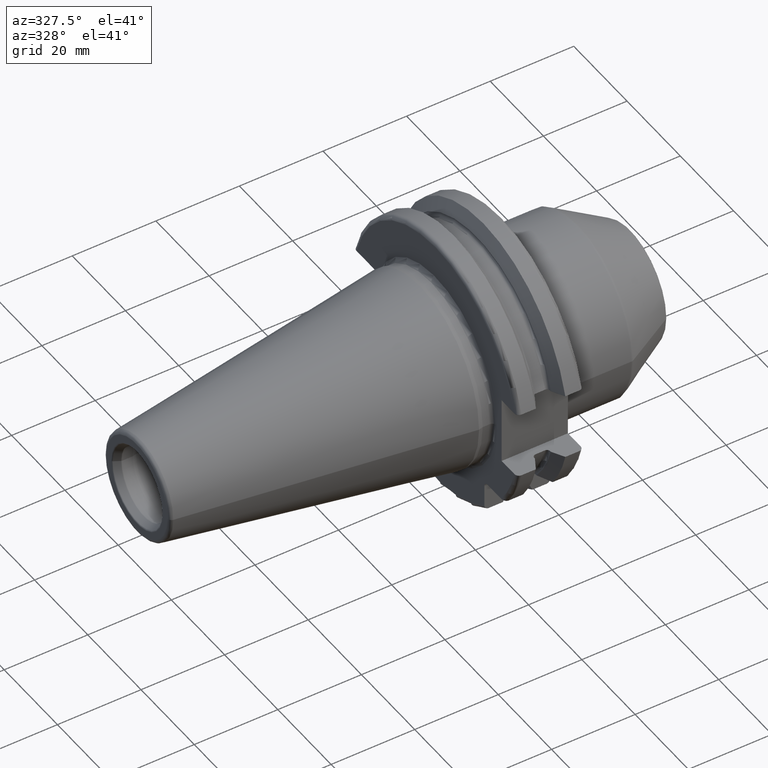
[diagram: clean part render]
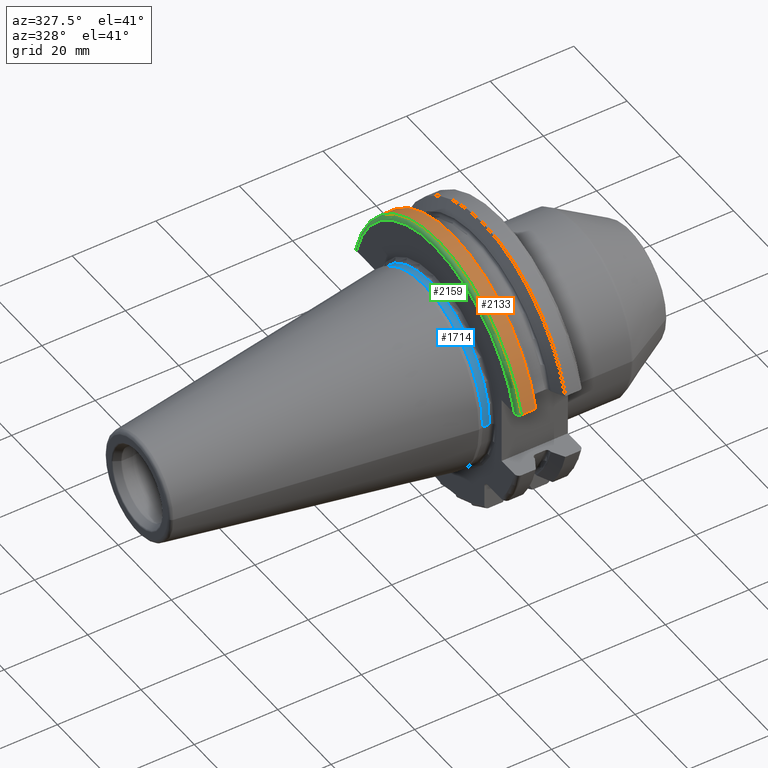
[diagram: same view with three faces highlighted in distinct colors, each labeled with its STEP entity id]
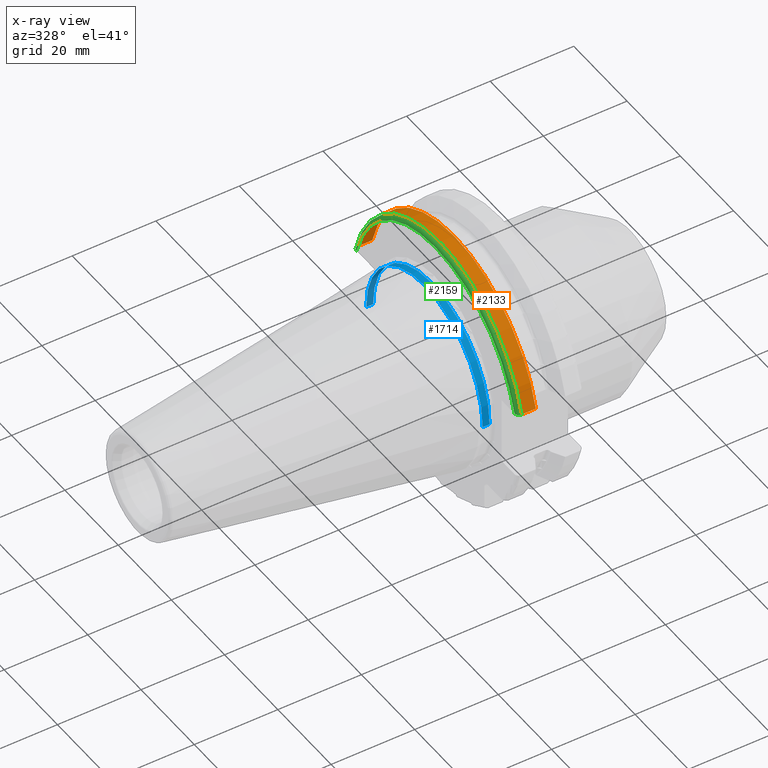
[diagram: x-ray of the same camera — body ghosted, the three highlighted faces saturated]
A machine part, auxiliary view with three faces highlighted in distinct colors.
The next image is the same camera in x-ray (body ghosted, the three faces saturated) — at least one of them is partly hidden behind the body in this view.
Their STEP definitions:

[orange] entity #2133 — the highlighted cylindrical surface (partial cylindrical patch) has radius 31.7625 mm, axis along (1, 0, 0).
#269=CARTESIAN_POINT('',(7.645946479578E0,3.071231684927E1,8.1E0));
#281=CARTESIAN_POINT('',(7.645946479578E0,-3.071231684927E1,8.1E0));
#412=DIRECTION('',(1.E0,0.E0,0.E0));
#413=VECTOR('',#412,3.445946479578E0);
#414=CARTESIAN_POINT('',(4.2E0,3.071231684927E1,8.1E0));
#415=LINE('',#414,#413);
#416=CARTESIAN_POINT('',(7.645946479578E0,0.E0,0.E0));
#417=DIRECTION('',(1.E0,0.E0,0.E0));
#418=DIRECTION('',(0.E0,9.669363825036E-1,2.550177095632E-1));
#419=AXIS2_PLACEMENT_3D('',#416,#417,#418);
#421=DIRECTION('',(1.E0,0.E0,0.E0));
#422=VECTOR('',#421,3.445946479578E0);
#423=CARTESIAN_POINT('',(4.2E0,-3.071231684927E1,8.1E0));
#424=LINE('',#423,#422);
#454=CARTESIAN_POINT('',(4.2E0,0.E0,0.E0));
#455=DIRECTION('',(1.E0,0.E0,0.E0));
#456=DIRECTION('',(0.E0,9.669363825036E-1,2.550177095632E-1));
#457=AXIS2_PLACEMENT_3D('',#454,#455,#456);
#1460=VERTEX_POINT('',#269);
#1461=VERTEX_POINT('',#281);
#1488=CARTESIAN_POINT('',(4.2E0,3.071231684927E1,8.1E0));
#1489=VERTEX_POINT('',#1488);
#1492=CARTESIAN_POINT('',(4.2E0,-3.071231684927E1,8.1E0));
#1493=VERTEX_POINT('',#1492);
#2121=CARTESIAN_POINT('',(-7.2615E1,0.E0,0.E0));
#2122=DIRECTION('',(1.E0,0.E0,0.E0));
#2123=DIRECTION('',(0.E0,-1.E0,0.E0));
#2124=AXIS2_PLACEMENT_3D('',#2121,#2122,#2123);
#2125=CYLINDRICAL_SURFACE('',#2124,3.17625E1);
#2126=ORIENTED_EDGE('',*,*,#1954,.T.);
#2127=ORIENTED_EDGE('',*,*,#1988,.T.);
#2128=ORIENTED_EDGE('',*,*,#2020,.F.);
#2130=ORIENTED_EDGE('',*,*,#2129,.F.);
#2131=EDGE_LOOP('',(#2126,#2127,#2128,#2130));
#2132=FACE_OUTER_BOUND('',#2131,.F.);
#2133=ADVANCED_FACE('',(#2132),#2125,.T.);
#420=CIRCLE('',#419,3.17625E1);
#458=CIRCLE('',#457,3.17625E1);
#1954=EDGE_CURVE('',#1489,#1460,#415,.T.);
#1988=EDGE_CURVE('',#1460,#1461,#420,.T.);
#2020=EDGE_CURVE('',#1493,#1461,#424,.T.);
#2129=EDGE_CURVE('',#1489,#1493,#458,.T.);

[blue] entity #1714 — the highlighted cylindrical surface (partial cylindrical patch) has radius 21.875 mm, axis along (1, 0, 0).
#73=CARTESIAN_POINT('',(5.5E-1,0.E0,0.E0));
#74=DIRECTION('',(1.E0,0.E0,0.E0));
#75=DIRECTION('',(0.E0,1.E0,0.E0));
#76=AXIS2_PLACEMENT_3D('',#73,#74,#75);
#78=CARTESIAN_POINT('',(2.2E0,0.E0,0.E0));
#79=DIRECTION('',(1.E0,0.E0,0.E0));
#80=DIRECTION('',(0.E0,1.E0,0.E0));
#81=AXIS2_PLACEMENT_3D('',#78,#79,#80);
#83=DIRECTION('',(-1.E0,0.E0,0.E0));
#84=VECTOR('',#83,1.65E0);
#85=CARTESIAN_POINT('',(2.2E0,2.1875E1,0.E0));
#86=LINE('',#85,#84);
#87=DIRECTION('',(-1.E0,0.E0,0.E0));
#88=VECTOR('',#87,1.65E0);
#89=CARTESIAN_POINT('',(2.2E0,-2.1875E1,0.E0));
#90=LINE('',#89,#88);
#1342=CARTESIAN_POINT('',(2.2E0,2.1875E1,0.E0));
#1343=CARTESIAN_POINT('',(5.5E-1,2.1875E1,0.E0));
#1344=VERTEX_POINT('',#1342);
#1345=VERTEX_POINT('',#1343);
#1347=CARTESIAN_POINT('',(2.2E0,-2.1875E1,0.E0));
#1349=VERTEX_POINT('',#1347);
#1350=CARTESIAN_POINT('',(5.5E-1,-2.1875E1,0.E0));
#1351=VERTEX_POINT('',#1350);
#1700=CARTESIAN_POINT('',(-7.2615E1,0.E0,0.E0));
#1701=DIRECTION('',(1.E0,0.E0,0.E0));
#1702=DIRECTION('',(0.E0,-1.E0,0.E0));
#1703=AXIS2_PLACEMENT_3D('',#1700,#1701,#1702);
#1704=CYLINDRICAL_SURFACE('',#1703,2.1875E1);
#1706=ORIENTED_EDGE('',*,*,#1705,.F.);
#1708=ORIENTED_EDGE('',*,*,#1707,.T.);
#1710=ORIENTED_EDGE('',*,*,#1709,.T.);
#1711=ORIENTED_EDGE('',*,*,#1693,.F.);
#1712=EDGE_LOOP('',(#1706,#1708,#1710,#1711));
#1713=FACE_OUTER_BOUND('',#1712,.F.);
#1714=ADVANCED_FACE('',(#1713),#1704,.T.);
#77=CIRCLE('',#76,2.1875E1);
#82=CIRCLE('',#81,2.1875E1);
#1693=EDGE_CURVE('',#1345,#1351,#77,.T.);
#1705=EDGE_CURVE('',#1344,#1345,#86,.T.);
#1707=EDGE_CURVE('',#1344,#1349,#82,.T.);
#1709=EDGE_CURVE('',#1349,#1351,#90,.T.);

[green] entity #2159 — the highlighted toroidal blend (fillet) surface has major radius 30.7625 mm and minor (blend) radius 1 mm.
#443=CARTESIAN_POINT('',(4.2E0,3.071231684927E1,8.1E0));
#444=CARTESIAN_POINT('',(4.122975496592E0,3.071231684927E1,8.1E0));
#445=CARTESIAN_POINT('',(3.973434275890E0,3.069445502310E1,8.1E0));
#446=CARTESIAN_POINT('',(3.757148362145E0,3.061539366421E1,8.1E0));
#447=CARTESIAN_POINT('',(3.565367695912E0,3.048860164744E1,8.1E0));
#448=CARTESIAN_POINT('',(3.407348762296E0,3.032249788839E1,8.1E0));
#449=CARTESIAN_POINT('',(3.289450816159E0,3.012561805664E1,8.1E0));
#450=CARTESIAN_POINT('',(3.216670609282E0,2.990711670215E1,8.1E0));
#451=CARTESIAN_POINT('',(3.2E0,2.975517161523E1,8.1E0));
#452=CARTESIAN_POINT('',(3.2E0,2.967695075728E1,8.1E0));
#454=CARTESIAN_POINT('',(4.2E0,0.E0,0.E0));
#455=DIRECTION('',(1.E0,0.E0,0.E0));
#456=DIRECTION('',(0.E0,9.669363825036E-1,2.550177095632E-1));
#457=AXIS2_PLACEMENT_3D('',#454,#455,#456);
#459=CARTESIAN_POINT('',(3.2E0,-2.967695075728E1,8.1E0));
#460=CARTESIAN_POINT('',(3.2E0,-2.975535829664E1,8.1E0));
#461=CARTESIAN_POINT('',(3.216736704136E0,-2.990767511790E1,8.1E0));
#462=CARTESIAN_POINT('',(3.290003023403E0,-3.012696803037E1,8.1E0));
#463=CARTESIAN_POINT('',(3.408578685874E0,-3.032415560769E1,8.1E0));
#464=CARTESIAN_POINT('',(3.566974678455E0,-3.048991705446E1,8.1E0));
#465=CARTESIAN_POINT('',(3.758498450120E0,-3.061600082070E1,8.1E0));
#466=CARTESIAN_POINT('',(3.973995795704E0,-3.069452712052E1,8.1E0));
#467=CARTESIAN_POINT('',(4.123165215148E0,-3.071231684927E1,8.1E0));
#468=CARTESIAN_POINT('',(4.2E0,-3.071231684927E1,8.1E0));
#499=CARTESIAN_POINT('',(3.2E0,0.E0,0.E0));
#500=DIRECTION('',(1.E0,0.E0,0.E0));
#501=DIRECTION('',(0.E0,9.647119303464E-1,2.633075985372E-1));
#502=AXIS2_PLACEMENT_3D('',#499,#500,#501);
#1488=CARTESIAN_POINT('',(4.2E0,3.071231684927E1,8.1E0));
#1489=VERTEX_POINT('',#1488);
#1492=CARTESIAN_POINT('',(4.2E0,-3.071231684927E1,8.1E0));
#1493=VERTEX_POINT('',#1492);
#1496=CARTESIAN_POINT('',(3.2E0,2.967695075728E1,8.1E0));
#1498=VERTEX_POINT('',#1496);
#1514=CARTESIAN_POINT('',(3.2E0,-2.967695075728E1,8.1E0));
#1515=VERTEX_POINT('',#1514);
#2147=CARTESIAN_POINT('',(4.2E0,0.E0,0.E0));
#2148=DIRECTION('',(1.E0,0.E0,0.E0));
#2149=DIRECTION('',(0.E0,-1.E0,0.E0));
#2150=AXIS2_PLACEMENT_3D('',#2147,#2148,#2149);
#2151=TOROIDAL_SURFACE('',#2150,3.07625E1,1.E0);
#2152=ORIENTED_EDGE('',*,*,#1956,.F.);
#2153=ORIENTED_EDGE('',*,*,#2129,.T.);
#2154=ORIENTED_EDGE('',*,*,#2018,.F.);
#2156=ORIENTED_EDGE('',*,*,#2155,.F.);
#2157=EDGE_LOOP('',(#2152,#2153,#2154,#2156));
#2158=FACE_OUTER_BOUND('',#2157,.F.);
#2159=ADVANCED_FACE('',(#2158),#2151,.T.);
#453=B_SPLINE_CURVE_WITH_KNOTS('',3,(#443,#444,#445,#446,#447,#448,#449,#450,
#451,#452),.UNSPECIFIED.,.F.,.F.,(4,1,1,1,1,1,1,4),(0.E0,1.428571428571E-1,
2.857142857143E-1,4.285714285714E-1,5.714285714286E-1,7.142857142857E-1,
8.571428571429E-1,1.E0),.UNSPECIFIED.);
#458=CIRCLE('',#457,3.17625E1);
#469=B_SPLINE_CURVE_WITH_KNOTS('',3,(#459,#460,#461,#462,#463,#464,#465,#466,
#467,#468),.UNSPECIFIED.,.F.,.F.,(4,1,1,1,1,1,1,4),(0.E0,1.428571428571E-1,
2.857142857143E-1,4.285714285714E-1,5.714285714286E-1,7.142857142857E-1,
8.571428571429E-1,1.E0),.UNSPECIFIED.);
#503=CIRCLE('',#502,3.07625E1);
#1956=EDGE_CURVE('',#1489,#1498,#453,.T.);
#2018=EDGE_CURVE('',#1515,#1493,#469,.T.);
#2129=EDGE_CURVE('',#1489,#1493,#458,.T.);
#2155=EDGE_CURVE('',#1498,#1515,#503,.T.);